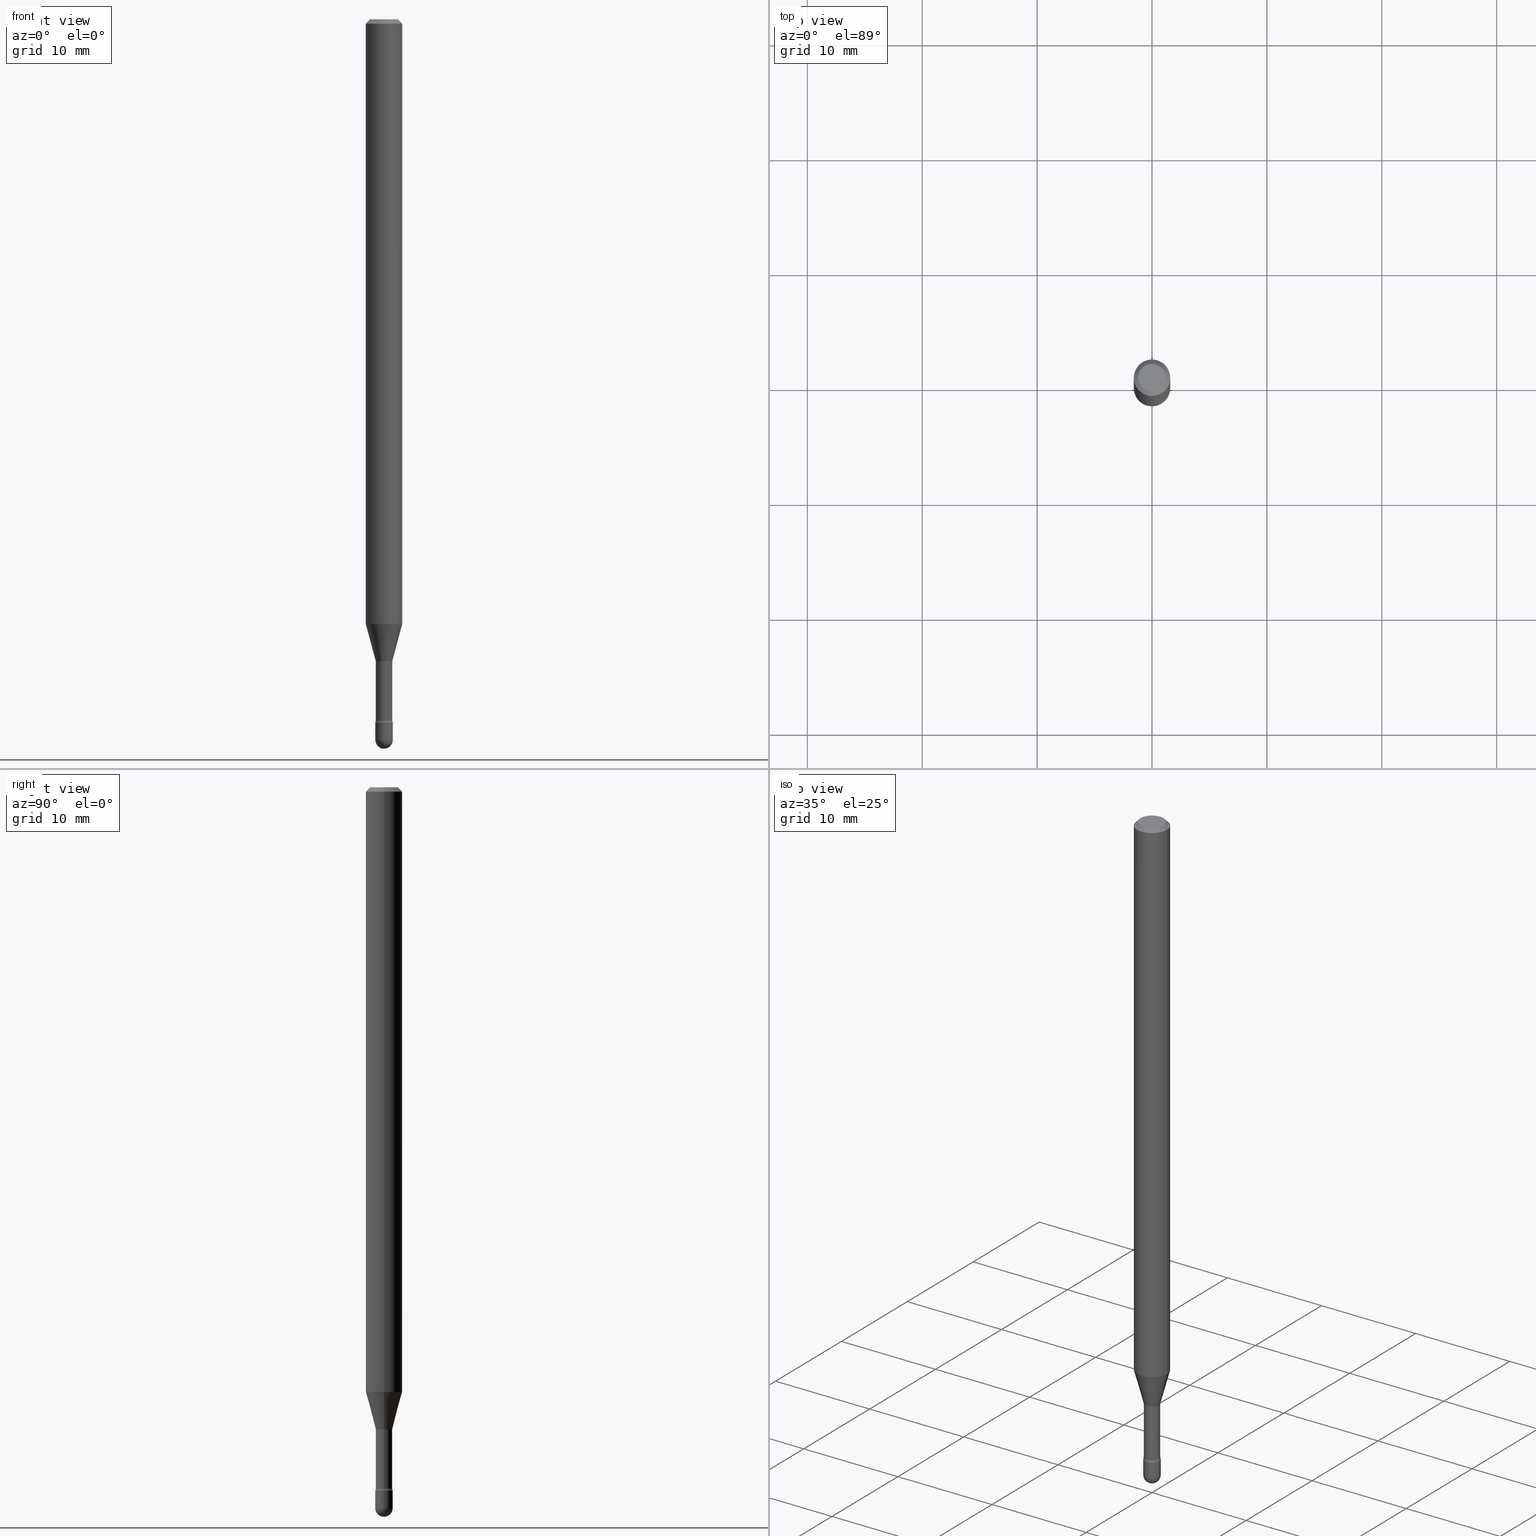
[diagram: canonical four-view strip — front | top / right | iso, engineering-drawing reading convention]
A machine part, canonical four-view strip (front | top / right | iso — engineering-drawing reading convention). The complete STEP part file that produces these views, byte-faithful:
ISO-10303-21;
HEADER;
FILE_DESCRIPTION (( 'STEP AP203' ),
    '1' );
FILE_NAME ('09495.STEP',
    '2024-04-09T23:51:36',
    ( '' ),
    ( '' ),
    'SwSTEP 2.0',
    'SolidWorks 2023',
    '' );
FILE_SCHEMA (( 'CONFIG_CONTROL_DESIGN' ));
ENDSEC;

DATA;
#1 = DATE_TIME_ROLE ( 'creation_date' ) ;
#2 = EDGE_LOOP ( 'NONE', ( #99, #191 ) ) ;
#3 = CONICAL_SURFACE ( 'NONE', #25, 0.02871111260566398468, 0.2617993877991500740 ) ;
#4 = AXIS2_PLACEMENT_3D ( 'NONE', #77, #243, #412 ) ;
#5 = PRODUCT_DEFINITION_FORMATION_WITH_SPECIFIED_SOURCE ( 'ANY', '', #278, .NOT_KNOWN. ) ;
#6 = DATE_AND_TIME ( #240, #58 ) ;
#7 = ORIENTED_EDGE ( 'NONE', *, *, #265, .T. ) ;
#8 = FACE_OUTER_BOUND ( 'NONE', #320, .T. ) ;
#9 = APPROVAL ( #153, 'UNSPECIFIED' ) ;
#10 = DIRECTION ( 'NONE',  ( -2.445468806185136877E-29, 3.491481338843145188E-15, 1.000000000000000000 ) ) ;
#11 = AXIS2_PLACEMENT_3D ( 'NONE', #490, #72, #251 ) ;
#12 = APPROVAL_PERSON_ORGANIZATION ( #270, #309, #442 ) ;
#13 = ORIENTED_EDGE ( 'NONE', *, *, #438, .F. ) ;
#14 = CARTESIAN_POINT ( 'NONE',  ( -0.03000000000000000583, -8.201307205883951433E-15, -2.410000000000000142 ) ) ;
#15 = ADVANCED_FACE ( 'NONE', ( #161 ), #512, .T. ) ;
#16 = LINE ( 'NONE', #101, #284 ) ;
#17 = ORIENTED_EDGE ( 'NONE', *, *, #232, .F. ) ;
#18 =( NAMED_UNIT ( * ) SI_UNIT ( $, .STERADIAN. ) SOLID_ANGLE_UNIT ( ) );
#19 = VERTEX_POINT ( 'NONE', #414 ) ;
#20 = DIRECTION ( 'NONE',  ( -2.445468806185136597E-29, 3.491481338843145583E-15, 1.000000000000000000 ) ) ;
#21 = CARTESIAN_POINT ( 'NONE',  ( 0.06250000000000000000, -4.888073874380391431E-16, -0.01500000000000008271 ) ) ;
#22 = DIRECTION ( 'NONE',  ( -2.445468806185136597E-29, 3.491481338843145583E-15, 1.000000000000000000 ) ) ;
#23 = ORIENTED_EDGE ( 'NONE', *, *, #491, .T. ) ;
#24 = DIRECTION ( 'NONE',  ( 1.000000000000000000, -6.982962677686299054E-15, 0.000000000000000000 ) ) ;
#25 = AXIS2_PLACEMENT_3D ( 'NONE', #122, #434, #262 ) ;
#26 = DIRECTION ( 'NONE',  ( 1.000000000000000000, -6.982962677686255667E-15, 0.000000000000000000 ) ) ;
#27 = AXIS2_PLACEMENT_3D ( 'NONE', #558, #562, #437 ) ;
#28 = EDGE_CURVE ( 'NONE', #59, #19, #385, .T. ) ;
#29 = EDGE_LOOP ( 'NONE', ( #477, #32, #354, #502 ) ) ;
#30 = CARTESIAN_POINT ( 'NONE',  ( 5.066988519135135927E-29, -7.234316714221647689E-15, -2.071990657300387895 ) ) ;
#31 = CARTESIAN_POINT ( 'NONE',  ( 6.040307951277287977E-29, -8.623958906942569995E-15, -2.470000000000000195 ) ) ;
#32 = ORIENTED_EDGE ( 'NONE', *, *, #343, .T. ) ;
#33 = DIRECTION ( 'NONE',  ( -1.000000000000000000, 6.982962677686265922E-15, -4.883557194083112340E-29 ) ) ;
#34 = DIRECTION ( 'NONE',  ( 0.7071067811865475727, -7.319954787623256045E-15, -0.7071067811865474617 ) ) ;
#35 = EDGE_CURVE ( 'NONE', #245, #548, #135, .T. ) ;
#36 = AXIS2_PLACEMENT_3D ( 'NONE', #503, #454, #552 ) ;
#37 = AXIS2_PLACEMENT_3D ( 'NONE', #63, #275, #155 ) ;
#38 = EDGE_CURVE ( 'NONE', #455, #245, #522, .T. ) ;
#39 = CARTESIAN_POINT ( 'NONE',  ( 0.02819999999999999590, -8.586514147837976028E-15, -2.402875394747777893 ) ) ;
#40 = DIRECTION ( 'NONE',  ( -2.445468806185136597E-29, 3.491481338843145583E-15, 1.000000000000000000 ) ) ;
#41 = DIRECTION ( 'NONE',  ( 1.000000000000000000, -6.982962677686278543E-15, 0.000000000000000000 ) ) ;
#42 = CC_DESIGN_DATE_AND_TIME_ASSIGNMENT ( #476, #1, ( #86 ) ) ;
#43 = CARTESIAN_POINT ( 'NONE',  ( -0.02819999999999999590, -7.838501188195762748E-15, -2.201974787463810923 ) ) ;
#44 = DIRECTION ( 'NONE',  ( -1.000000000000000000, 7.105427357600978193E-15, 0.000000000000000000 ) ) ;
#45 = AXIS2_PLACEMENT_3D ( 'NONE', #115, #296, #459 ) ;
#46 = APPLICATION_PROTOCOL_DEFINITION ( 'international standard', 'config_control_design', 1994, #229 ) ;
#47 = CYLINDRICAL_SURFACE ( 'NONE', #65, 0.03000000000000000583 ) ;
#48 = ORIENTED_EDGE ( 'NONE', *, *, #431, .F. ) ;
#49 = PERSON_AND_ORGANIZATION ( #421, #480 ) ;
#50 = CARTESIAN_POINT ( 'NONE',  ( 5.893579822906179826E-29, -8.414470026611981678E-15, -2.410000000000000142 ) ) ;
#51 = EDGE_LOOP ( 'NONE', ( #447, #162, #253, #274 ) ) ;
#52 = EDGE_CURVE ( 'NONE', #532, #249, #305, .T. ) ;
#53 = PERSON_AND_ORGANIZATION ( #421, #480 ) ;
#54 = MANIFOLD_SOLID_BREP ( 'Body-Move/Copy2[1]', #470 ) ;
#55 = AXIS2_PLACEMENT_3D ( 'NONE', #256, #535, #26 ) ;
#56 = AXIS2_PLACEMENT_3D ( 'NONE', #500, #111, #69 ) ;
#57 = SECURITY_CLASSIFICATION_LEVEL ( 'unclassified' ) ;
#58 = LOCAL_TIME ( 19, 51, 36.00000000000000000, #227 ) ;
#59 = VERTEX_POINT ( 'NONE', #547 ) ;
#60 = CARTESIAN_POINT ( 'NONE',  ( 6.114954764896610855E-29, -8.726866376909143979E-15, -2.500000000000000000 ) ) ;
#61 = EDGE_CURVE ( 'NONE', #159, #366, #425, .T. ) ;
#62 = EDGE_LOOP ( 'NONE', ( #504, #551, #411, #489 ) ) ;
#63 = CARTESIAN_POINT ( 'NONE',  ( 5.384860654748895550E-29, -7.688153879032997927E-15, -2.201974787463810923 ) ) ;
#64 = FACE_OUTER_BOUND ( 'NONE', #283, .T. ) ;
#65 = AXIS2_PLACEMENT_3D ( 'NONE', #176, #395, #224 ) ;
#66 = EDGE_LOOP ( 'NONE', ( #288, #415, #201, #7 ) ) ;
#67 = DIRECTION ( 'NONE',  ( 1.000000000000000000, -6.982962677686265922E-15, 4.883557194083112340E-29 ) ) ;
#68 = EDGE_LOOP ( 'NONE', ( #439, #566, #139, #314 ) ) ;
#69 = DIRECTION ( 'NONE',  ( 1.000000000000000000, -6.982962677686277755E-15, 0.000000000000000000 ) ) ;
#70 = DIRECTION ( 'NONE',  ( -2.445468806185136597E-29, 3.491481338843145583E-15, 1.000000000000000000 ) ) ;
#71 = ORIENTED_EDGE ( 'NONE', *, *, #533, .T. ) ;
#72 = DIRECTION ( 'NONE',  ( -2.445468806185136597E-29, 3.491481338843145583E-15, 1.000000000000000000 ) ) ;
#73 = VERTEX_POINT ( 'NONE', #287 ) ;
#74 = CIRCLE ( 'NONE', #295, 0.04749999999999999362 ) ;
#75 = LOCAL_TIME ( 19, 51, 36.00000000000000000, #94 ) ;
#76 = VERTEX_POINT ( 'NONE', #330 ) ;
#77 = CARTESIAN_POINT ( 'NONE',  ( -0.04320000000000000923, -8.082640138478858353E-15, -2.402875394747777449 ) ) ;
#78 = DIRECTION ( 'NONE',  ( -2.445468806185136597E-29, 3.491481338843145583E-15, 1.000000000000000000 ) ) ;
#79 = CARTESIAN_POINT ( 'NONE',  ( -1.169113584055446105E-44, 1.669184350826100908E-30, 4.780733988912460139E-16 ) ) ;
#80 = ADVANCED_FACE ( 'NONE', ( #501 ), #550, .T. ) ;
#81 = CARTESIAN_POINT ( 'NONE',  ( 2.094888803306483442E-16, 0.02999999999999137038, -2.470000000000000195 ) ) ;
#82 = EDGE_CURVE ( 'NONE', #181, #76, #461, .T. ) ;
#83 = CARTESIAN_POINT ( 'NONE',  ( 3.668203209277725232E-31, -5.237222008264747365E-17, -0.01500000000000008271 ) ) ;
#84 = CIRCLE ( 'NONE', #56, 0.02871111260566398468 ) ;
#85 = LOCAL_TIME ( 19, 51, 36.00000000000000000, #353 ) ;
#87 = CARTESIAN_POINT ( 'NONE',  ( -0.04320000000000000229, -7.381199417184635320E-15, -2.201974787463810923 ) ) ;
#86 = PRODUCT_DEFINITION ( 'UNKNOWN', '', #5, #102 ) ;
#88 = ADVANCED_BREP_SHAPE_REPRESENTATION ( '09495', ( #54, #239, #531 ), #498 ) ;
#89 = PERSON_AND_ORGANIZATION ( #421, #480 ) ;
#90 = DIRECTION ( 'NONE',  ( 1.000000000000000000, -6.982962677686269866E-15, 4.883557194083114583E-29 ) ) ;
#91 = AXIS2_PLACEMENT_3D ( 'NONE', #329, #464, #324 ) ;
#92 = EDGE_CURVE ( 'NONE', #488, #208, #106, .T. ) ;
#93 = ORIENTED_EDGE ( 'NONE', *, *, #38, .T. ) ;
#94 = COORDINATED_UNIVERSAL_TIME_OFFSET ( 5, 0, .BEHIND. ) ;
#95 = LINE ( 'NONE', #133, #264 ) ;
#96 = ORIENTED_EDGE ( 'NONE', *, *, #399, .T. ) ;
#97 = AXIS2_PLACEMENT_3D ( 'NONE', #391, #433, #168 ) ;
#98 = ADVANCED_FACE ( 'NONE', ( #380 ), #244, .T. ) ;
#99 = ORIENTED_EDGE ( 'NONE', *, *, #563, .T. ) ;
#100 = DIRECTION ( 'NONE',  ( -2.445468806185136597E-29, 3.491481338843145583E-15, 1.000000000000000000 ) ) ;
#101 = CARTESIAN_POINT ( 'NONE',  ( -0.02871111260566398468, -7.470594226065859749E-15, -2.198092501787273001 ) ) ;
#102 = DESIGN_CONTEXT ( 'detailed design', #229, 'design' ) ;
#103 = COORDINATED_UNIVERSAL_TIME_OFFSET ( 5, 0, .BEHIND. ) ;
#104 = ORIENTED_EDGE ( 'NONE', *, *, #387, .F. ) ;
#105 = CARTESIAN_POINT ( 'NONE',  ( 3.668203209277725232E-31, -5.237222008264747365E-17, -0.01500000000000008271 ) ) ;
#106 = CIRCLE ( 'NONE', #143, 0.02999999999999997807 ) ;
#107 = AXIS2_PLACEMENT_3D ( 'NONE', #130, #310, #517 ) ;
#108 = CARTESIAN_POINT ( 'NONE',  ( 0.04320000000000000923, -8.691258588003269398E-15, -2.402875394747777449 ) ) ;
#109 = ORIENTED_EDGE ( 'NONE', *, *, #280, .F. ) ;
#110 = EDGE_CURVE ( 'NONE', #488, #290, #177, .T. ) ;
#111 = DIRECTION ( 'NONE',  ( -2.445468806185136597E-29, 3.491481338843145583E-15, 1.000000000000000000 ) ) ;
#112 = DIRECTION ( 'NONE',  ( -2.445468806185136597E-29, 3.491481338843145583E-15, 1.000000000000000000 ) ) ;
#113 = ORIENTED_EDGE ( 'NONE', *, *, #138, .F. ) ;
#114 = DIRECTION ( 'NONE',  ( 1.000000000000000000, -6.982962677686266711E-15, 0.000000000000000000 ) ) ;
#115 = CARTESIAN_POINT ( 'NONE',  ( 3.668203209277725232E-31, -5.237222008264747365E-17, -0.01500000000000008271 ) ) ;
#116 = DIRECTION ( 'NONE',  ( -2.445468806185136597E-29, 3.491481338843145583E-15, 1.000000000000000000 ) ) ;
#117 = ORIENTED_EDGE ( 'NONE', *, *, #242, .T. ) ;
#118 = AXIS2_PLACEMENT_3D ( 'NONE', #83, #40, #126 ) ;
#119 = APPLICATION_CONTEXT ( 'configuration controlled 3d designs of mechanical parts and assemblies' ) ;
#120 = CIRCLE ( 'NONE', #523, 0.02999999999999999889 ) ;
#121 = PRODUCT_RELATED_PRODUCT_CATEGORY ( 'detail', '', ( #278 ) ) ;
#122 = CARTESIAN_POINT ( 'NONE',  ( 5.375366646230222807E-29, -7.674598951041308129E-15, -2.198092501787273001 ) ) ;
#123 = DIRECTION ( 'NONE',  ( -2.445468806185136877E-29, 3.491481338843145188E-15, 1.000000000000000000 ) ) ;
#124 = EDGE_CURVE ( 'NONE', #137, #548, #457, .T. ) ;
#125 = CARTESIAN_POINT ( 'NONE',  ( 5.876156823005485882E-29, -8.389594600327222537E-15, -2.402875394747777449 ) ) ;
#126 = DIRECTION ( 'NONE',  ( 1.000000000000000000, -6.982962677686266711E-15, 0.000000000000000000 ) ) ;
#127 = CIRCLE ( 'NONE', #365, 0.02819999999999999590 ) ;
#128 = ADVANCED_FACE ( 'NONE', ( #347 ), #3, .T. ) ;
#129 = FACE_OUTER_BOUND ( 'NONE', #185, .T. ) ;
#130 = CARTESIAN_POINT ( 'NONE',  ( 6.040307951277287977E-29, -8.623958906942569995E-15, -2.470000000000000195 ) ) ;
#131 = CARTESIAN_POINT ( 'NONE',  ( 5.893579822906179826E-29, -8.414470026611981678E-15, -2.410000000000000142 ) ) ;
#132 = PERSON_AND_ORGANIZATION ( #421, #480 ) ;
#133 = CARTESIAN_POINT ( 'NONE',  ( -0.03000000000000000583, 2.131628207280300972E-16, -1.475680527076471882E-30 ) ) ;
#134 = ADVANCED_FACE ( 'NONE', ( #342 ), #559, .F. ) ;
#135 = CIRCLE ( 'NONE', #216, 0.02819999999999999590 ) ;
#136 = AXIS2_PLACEMENT_3D ( 'NONE', #473, #432, #90 ) ;
#137 = VERTEX_POINT ( 'NONE', #557 ) ;
#138 = EDGE_CURVE ( 'NONE', #366, #73, #364, .T. ) ;
#139 = ORIENTED_EDGE ( 'NONE', *, *, #367, .F. ) ;
#140 = CARTESIAN_POINT ( 'NONE',  ( -0.06250000000000000000, 3.840629472727441958E-16, -0.01500000000000008271 ) ) ;
#141 = EDGE_LOOP ( 'NONE', ( #13, #331, #71, #368 ) ) ;
#142 = DIRECTION ( 'NONE',  ( -1.000000000000000000, 6.982962677686266711E-15, 0.000000000000000000 ) ) ;
#143 = AXIS2_PLACEMENT_3D ( 'NONE', #31, #67, #211 ) ;
#144 = VERTEX_POINT ( 'NONE', #219 ) ;
#145 = AXIS2_PLACEMENT_3D ( 'NONE', #105, #539, #114 ) ;
#146 = EDGE_LOOP ( 'NONE', ( #521, #23, #113, #202 ) ) ;
#147 = DIRECTION ( 'NONE',  ( 1.000000000000000000, -6.982962677686270655E-15, 4.883557194083114583E-29 ) ) ;
#148 = FACE_OUTER_BOUND ( 'NONE', #62, .T. ) ;
#149 = APPROVAL_STATUS ( 'not_yet_approved' ) ;
#150 = ORIENTED_EDGE ( 'NONE', *, *, #138, .T. ) ;
#151 = ORIENTED_EDGE ( 'NONE', *, *, #497, .F. ) ;
#152 = EDGE_CURVE ( 'NONE', #19, #366, #221, .T. ) ;
#153 = APPROVAL_STATUS ( 'not_yet_approved' ) ;
#154 = EDGE_LOOP ( 'NONE', ( #402, #323, #267, #212, #499 ) ) ;
#155 = DIRECTION ( 'NONE',  ( 1.000000000000000000, -6.982962677686269866E-15, 4.883557194083114583E-29 ) ) ;
#156 = AXIS2_PLACEMENT_3D ( 'NONE', #79, #370, #417 ) ;
#157 = CIRCLE ( 'NONE', #429, 0.03000000000000000583 ) ;
#158 = DIRECTION ( 'NONE',  ( 1.000000000000000000, -6.982962677686262766E-15, 0.000000000000000000 ) ) ;
#159 = VERTEX_POINT ( 'NONE', #345 ) ;
#160 = PLANE ( 'NONE',  #91 ) ;
#161 = FACE_OUTER_BOUND ( 'NONE', #146, .T. ) ;
#162 = ORIENTED_EDGE ( 'NONE', *, *, #167, .T. ) ;
#163 = CARTESIAN_POINT ( 'NONE',  ( 0.03000000000000000583, -2.094888803305880457E-16, 1.462853032738781053E-30 ) ) ;
#164 = APPROVAL ( #149, 'UNSPECIFIED' ) ;
#165 = EDGE_LOOP ( 'NONE', ( #534, #151, #93, #198 ) ) ;
#166 = ORIENTED_EDGE ( 'NONE', *, *, #236, .F. ) ;
#167 = EDGE_CURVE ( 'NONE', #137, #532, #317, .T. ) ;
#168 = DIRECTION ( 'NONE',  ( 6.982962677686265922E-15, 1.000000000000000000, 0.000000000000000000 ) ) ;
#169 = CARTESIAN_POINT ( 'NONE',  ( 5.384860654748895550E-29, -7.688153879032997927E-15, -2.201974787463810923 ) ) ;
#170 = CC_DESIGN_APPROVAL ( #309, ( #5 ) ) ;
#171 = LENGTH_MEASURE_WITH_UNIT ( LENGTH_MEASURE( 0.02539999999999999897 ), #427 );
#172 = CARTESIAN_POINT ( 'NONE',  ( 5.876156823005487003E-29, -8.389594600327222537E-15, -2.402875394747777893 ) ) ;
#173 = CARTESIAN_POINT ( 'NONE',  ( 0.06250000000000000000, -4.364351673553899931E-16, 4.780733988912490708E-16 ) ) ;
#174 = EDGE_CURVE ( 'NONE', #144, #548, #192, .T. ) ;
#175 = LINE ( 'NONE', #389, #418 ) ;
#176 = CARTESIAN_POINT ( 'NONE',  ( 0.000000000000000000, 0.000000000000000000, 0.000000000000000000 ) ) ;
#177 = CIRCLE ( 'NONE', #281, 0.02999999999999997807 ) ;
#178 = CIRCLE ( 'NONE', #250, 0.04749999999999999362 ) ;
#179 = DIRECTION ( 'NONE',  ( 1.000000000000000000, -6.982962677686266711E-15, 4.947382444955205209E-29 ) ) ;
#180 = PERSON_AND_ORGANIZATION_ROLE ( 'creator' ) ;
#181 = VERTEX_POINT ( 'NONE', #303 ) ;
#182 = APPROVAL_DATE_TIME ( #6, #9 ) ;
#183 = ADVANCED_FACE ( 'NONE', ( #258 ), #507, .F. ) ;
#184 = AXIS2_PLACEMENT_3D ( 'NONE', #234, #408, #147 ) ;
#185 = EDGE_LOOP ( 'NONE', ( #453, #374, #527, #413 ) ) ;
#186 = EDGE_LOOP ( 'NONE', ( #371, #96, #538, #233 ) ) ;
#187 = COORDINATED_UNIVERSAL_TIME_OFFSET ( 5, 0, .BEHIND. ) ;
#188 = DIRECTION ( 'NONE',  ( -0.7071067811865475727, 2.468850131082257455E-15, -0.7071067811865474617 ) ) ;
#189 = UNCERTAINTY_MEASURE_WITH_UNIT (LENGTH_MEASURE( 1.000000000000000082E-05 ), #554, 'distance_accuracy_value', 'NONE');
#190 = ADVANCED_FACE ( 'NONE', ( #392 ), #358, .T. ) ;
#191 = ORIENTED_EDGE ( 'NONE', *, *, #471, .T. ) ;
#192 = CIRCLE ( 'NONE', #325, 0.01500000000000002720 ) ;
#193 = ORIENTED_EDGE ( 'NONE', *, *, #276, .F. ) ;
#194 = CARTESIAN_POINT ( 'NONE',  ( 2.023552857353652888E-45, -2.889097183224559242E-31, -8.274703207154537794E-17 ) ) ;
#195 = CC_DESIGN_APPROVAL ( #9, ( #86 ) ) ;
#196 = PLANE ( 'NONE',  #308 ) ;
#197 = PRODUCT_DEFINITION_SHAPE ( 'NONE', 'NONE',  #86 ) ;
#198 = ORIENTED_EDGE ( 'NONE', *, *, #35, .T. ) ;
#199 = CARTESIAN_POINT ( 'NONE',  ( -0.06250000000000000000, 4.440892098500642925E-16, 4.780733988912429571E-16 ) ) ;
#200 = ADVANCED_FACE ( 'NONE', ( #307 ), #47, .T. ) ;
#201 = ORIENTED_EDGE ( 'NONE', *, *, #52, .T. ) ;
#202 = ORIENTED_EDGE ( 'NONE', *, *, #152, .F. ) ;
#203 = CARTESIAN_POINT ( 'NONE',  ( -1.169113584055446105E-44, 1.669184350826100908E-30, 4.780733988912460139E-16 ) ) ;
#204 = EDGE_LOOP ( 'NONE', ( #193, #117, #326, #458, #166 ) ) ;
#205 = AXIS2_PLACEMENT_3D ( 'NONE', #50, #360, #268 ) ;
#206 = DIRECTION ( 'NONE',  ( 1.000000000000000000, -6.982962677686299054E-15, 0.000000000000000000 ) ) ;
#207 = LOCAL_TIME ( 19, 51, 36.00000000000000000, #103 ) ;
#208 = VERTEX_POINT ( 'NONE', #81 ) ;
#209 = DIRECTION ( 'NONE',  ( 1.000000000000000000, -6.982962677686262766E-15, 0.000000000000000000 ) ) ;
#210 = LINE ( 'NONE', #163, #375 ) ;
#211 = DIRECTION ( 'NONE',  ( 6.982962677686265922E-15, 1.000000000000000000, 0.000000000000000000 ) ) ;
#212 = ORIENTED_EDGE ( 'NONE', *, *, #404, .F. ) ;
#213 = CC_DESIGN_PERSON_AND_ORGANIZATION_ASSIGNMENT ( #403, #525, ( #278 ) ) ;
#214 = FACE_OUTER_BOUND ( 'NONE', #68, .T. ) ;
#215 = DIRECTION ( 'NONE',  ( 1.000000000000000000, -6.982962677686266711E-15, 4.947382444955205209E-29 ) ) ;
#216 = AXIS2_PLACEMENT_3D ( 'NONE', #169, #116, #298 ) ;
#217 = FACE_OUTER_BOUND ( 'NONE', #154, .T. ) ;
#218 = AXIS2_PLACEMENT_3D ( 'NONE', #350, #352, #516 ) ;
#219 = CARTESIAN_POINT ( 'NONE',  ( -0.02871111260566398468, -7.130410865218722411E-15, -2.198092501787273001 ) ) ;
#220 = CARTESIAN_POINT ( 'NONE',  ( 5.384860654748895550E-29, -7.688153879032997927E-15, -2.201974787463810923 ) ) ;
#221 = LINE ( 'NONE', #173, #435 ) ;
#222 = AXIS2_PLACEMENT_3D ( 'NONE', #510, #286, #394 ) ;
#223 = APPLICATION_PROTOCOL_DEFINITION ( 'international standard', 'config_control_design', 1994, #119 ) ;
#224 = DIRECTION ( 'NONE',  ( 1.000000000000000000, -6.982962677686266711E-15, 4.876176775795935793E-29 ) ) ;
#225 = ADVANCED_FACE ( 'NONE', ( #217 ), #556, .T. ) ;
#226 = ORIENTED_EDGE ( 'NONE', *, *, #265, .F. ) ;
#227 = COORDINATED_UNIVERSAL_TIME_OFFSET ( 5, 0, .BEHIND. ) ;
#228 = LINE ( 'NONE', #140, #260 ) ;
#229 = APPLICATION_CONTEXT ( 'configuration controlled 3d designs of mechanical parts and assemblies' ) ;
#230 = PERSON_AND_ORGANIZATION_ROLE ( 'creator' ) ;
#231 = PERSON_AND_ORGANIZATION_ROLE ( 'classification_officer' ) ;
#232 = EDGE_CURVE ( 'NONE', #208, #382, #472, .T. ) ;
#233 = ORIENTED_EDGE ( 'NONE', *, *, #555, .F. ) ;
#234 = CARTESIAN_POINT ( 'NONE',  ( 5.876156823005485882E-29, -8.389594600327222537E-15, -2.402875394747777449 ) ) ;
#235 = ORIENTED_EDGE ( 'NONE', *, *, #399, .F. ) ;
#236 = EDGE_CURVE ( 'NONE', #76, #181, #120, .T. ) ;
#237 = TOROIDAL_SURFACE ( 'NONE', #37, 0.04320000000000000229, 0.01500000000000002373 ) ;
#238 = DIRECTION ( 'NONE',  ( 1.000000000000000000, -6.982962677686265922E-15, 4.876176775795935793E-29 ) ) ;
#239 = MANIFOLD_SOLID_BREP ( 'Body-Move/Copy2[2]', #346 ) ;
#240 = CALENDAR_DATE ( 2024, 9, 4 ) ;
#241 = ORIENTED_EDGE ( 'NONE', *, *, #438, .T. ) ;
#242 = EDGE_CURVE ( 'NONE', #382, #290, #157, .T. ) ;
#243 = DIRECTION ( 'NONE',  ( 7.105427357601001859E-15, 1.000000000000000000, -3.491481338843145583E-15 ) ) ;
#244 = CYLINDRICAL_SURFACE ( 'NONE', #529, 0.02819999999999999590 ) ;
#245 = VERTEX_POINT ( 'NONE', #428 ) ;
#246 = FACE_OUTER_BOUND ( 'NONE', #448, .T. ) ;
#247 = DIRECTION ( 'NONE',  ( -2.445468806185136597E-29, 3.491481338843145583E-15, 1.000000000000000000 ) ) ;
#248 = CARTESIAN_POINT ( 'NONE',  ( 0.06250000000000000000, -4.811533449433681963E-16, -0.01500000000000008271 ) ) ;
#249 = VERTEX_POINT ( 'NONE', #406 ) ;
#250 = AXIS2_PLACEMENT_3D ( 'NONE', #349, #255, #511 ) ;
#251 = DIRECTION ( 'NONE',  ( 1.000000000000000000, -6.982962677686268288E-15, 0.000000000000000000 ) ) ;
#252 = DIRECTION ( 'NONE',  ( 1.000000000000000000, -6.982962677686262766E-15, 0.000000000000000000 ) ) ;
#253 = ORIENTED_EDGE ( 'NONE', *, *, #300, .T. ) ;
#254 = DIRECTION ( 'NONE',  ( -2.445468806185136597E-29, 3.491481338843145583E-15, 1.000000000000000000 ) ) ;
#255 = DIRECTION ( 'NONE',  ( -2.445468806185136597E-29, 3.491481338843145583E-15, 1.000000000000000000 ) ) ;
#256 = CARTESIAN_POINT ( 'NONE',  ( 0.04320000000000000229, -7.989817866709044787E-15, -2.201974787463810923 ) ) ;
#257 = FACE_OUTER_BOUND ( 'NONE', #545, .T. ) ;
#258 = FACE_OUTER_BOUND ( 'NONE', #141, .T. ) ;
#259 = AXIS2_PLACEMENT_3D ( 'NONE', #125, #390, #467 ) ;
#260 = VECTOR ( 'NONE', #188, 39.37007874015748143 ) ;
#261 = CARTESIAN_POINT ( 'NONE',  ( 6.040307951277287977E-29, -8.623958906942569995E-15, -2.470000000000000195 ) ) ;
#262 = DIRECTION ( 'NONE',  ( 1.000000000000000000, -6.982962677686277755E-15, 0.000000000000000000 ) ) ;
#263 = DIRECTION ( 'NONE',  ( -2.445468806185136597E-29, 3.491481338843145583E-15, 1.000000000000000000 ) ) ;
#264 = VECTOR ( 'NONE', #520, 39.37007874015748143 ) ;
#265 = EDGE_CURVE ( 'NONE', #249, #482, #508, .T. ) ;
#266 = ORIENTED_EDGE ( 'NONE', *, *, #110, .T. ) ;
#267 = ORIENTED_EDGE ( 'NONE', *, *, #82, .F. ) ;
#268 = DIRECTION ( 'NONE',  ( 1.000000000000000000, -6.982962677686268288E-15, 0.000000000000000000 ) ) ;
#269 = EDGE_LOOP ( 'NONE', ( #235, #241, #319, #492 ) ) ;
#270 = PERSON_AND_ORGANIZATION ( #421, #480 ) ;
#271 = VECTOR ( 'NONE', #34, 39.37007874015748143 ) ;
#272 = VECTOR ( 'NONE', #273, 39.37007874015748143 ) ;
#273 = DIRECTION ( 'NONE',  ( -2.445468806185136877E-29, 3.491481338843145188E-15, 1.000000000000000000 ) ) ;
#274 = ORIENTED_EDGE ( 'NONE', *, *, #533, .F. ) ;
#275 = DIRECTION ( 'NONE',  ( -2.445468806185136597E-29, 3.491481338843145583E-15, 1.000000000000000000 ) ) ;
#276 = EDGE_CURVE ( 'NONE', #382, #76, #95, .T. ) ;
#277 = ORIENTED_EDGE ( 'NONE', *, *, #491, .F. ) ;
#278 = PRODUCT ( '09495', '09495', '', ( #537 ) ) ;
#279 = CARTESIAN_POINT ( 'NONE',  ( 5.893579822906179826E-29, -8.414470026611981678E-15, -2.410000000000000142 ) ) ;
#280 = EDGE_CURVE ( 'NONE', #333, #73, #228, .T. ) ;
#281 = AXIS2_PLACEMENT_3D ( 'NONE', #373, #336, #541 ) ;
#282 = CALENDAR_DATE ( 2024, 9, 4 ) ;
#283 = EDGE_LOOP ( 'NONE', ( #466, #337 ) ) ;
#284 = VECTOR ( 'NONE', #420, 39.37007874015747433 ) ;
#285 = FACE_OUTER_BOUND ( 'NONE', #2, .T. ) ;
#286 = DIRECTION ( 'NONE',  ( -2.438088387897960049E-29, 3.491481338843145188E-15, 1.000000000000000000 ) ) ;
#287 = CARTESIAN_POINT ( 'NONE',  ( -0.06250000000000000000, -3.199255257302084965E-15, -0.01500000000000008271 ) ) ;
#288 = ORIENTED_EDGE ( 'NONE', *, *, #343, .F. ) ;
#289 = CARTESIAN_POINT ( 'NONE',  ( 5.066988519135135927E-29, -7.234316714221647689E-15, -2.071990657300387895 ) ) ;
#290 = VERTEX_POINT ( 'NONE', #407 ) ;
#291 = ADVANCED_FACE ( 'NONE', ( #8 ), #338, .T. ) ;
#292 = CARTESIAN_POINT ( 'NONE',  ( 5.893579822906179826E-29, -8.414470026611981678E-15, -2.410000000000000142 ) ) ;
#293 = VERTEX_POINT ( 'NONE', #316 ) ;
#294 = AXIS2_PLACEMENT_3D ( 'NONE', #172, #263, #299 ) ;
#295 = AXIS2_PLACEMENT_3D ( 'NONE', #194, #379, #369 ) ;
#296 = DIRECTION ( 'NONE',  ( 2.445468806185136597E-29, -3.491481338843145583E-15, -1.000000000000000000 ) ) ;
#297 = LOCAL_TIME ( 19, 51, 36.00000000000000000, #187 ) ;
#298 = DIRECTION ( 'NONE',  ( 1.000000000000000000, -6.982962677686278543E-15, 0.000000000000000000 ) ) ;
#299 = DIRECTION ( 'NONE',  ( 1.000000000000000000, -6.982962677686278543E-15, 0.000000000000000000 ) ) ;
#300 = EDGE_CURVE ( 'NONE', #532, #245, #356, .T. ) ;
#301 = CC_DESIGN_DATE_AND_TIME_ASSIGNMENT ( #524, #361, ( #396 ) ) ;
#302 = DIRECTION ( 'NONE',  ( -2.445468806185136597E-29, 3.491481338843145583E-15, 1.000000000000000000 ) ) ;
#303 = CARTESIAN_POINT ( 'NONE',  ( 0.02999999999999999889, -8.623958906942569995E-15, -2.410000000000000142 ) ) ;
#304 = EDGE_CURVE ( 'NONE', #532, #137, #443, .T. ) ;
#305 = CIRCLE ( 'NONE', #495, 0.01500000000000001159 ) ;
#306 =( NAMED_UNIT ( * ) PLANE_ANGLE_UNIT ( ) SI_UNIT ( $, .RADIAN. ) );
#307 = FACE_OUTER_BOUND ( 'NONE', #204, .T. ) ;
#308 = AXIS2_PLACEMENT_3D ( 'NONE', #279, #449, #238 ) ;
#310 = DIRECTION ( 'NONE',  ( -2.445468806185136597E-29, 3.491481338843145583E-15, 1.000000000000000000 ) ) ;
#309 = APPROVAL ( #397, 'UNSPECIFIED' ) ;
#311 = DIRECTION ( 'NONE',  ( -2.445468806185136597E-29, 3.491481338843145583E-15, 1.000000000000000000 ) ) ;
#312 = CALENDAR_DATE ( 2024, 9, 4 ) ;
#313 = CIRCLE ( 'NONE', #318, 0.03000000000000000583 ) ;
#314 = ORIENTED_EDGE ( 'NONE', *, *, #339, .F. ) ;
#315 = CARTESIAN_POINT ( 'NONE',  ( 0.000000000000000000, 0.000000000000000000, 0.000000000000000000 ) ) ;
#316 = CARTESIAN_POINT ( 'NONE',  ( 0.03000000000000000583, -8.728703347107864943E-15, -2.470000000000000195 ) ) ;
#317 = CIRCLE ( 'NONE', #294, 0.02819999999999999590 ) ;
#318 = AXIS2_PLACEMENT_3D ( 'NONE', #540, #247, #206 ) ;
#319 = ORIENTED_EDGE ( 'NONE', *, *, #555, .T. ) ;
#320 = EDGE_LOOP ( 'NONE', ( #463, #441, #150, #109 ) ) ;
#321 = ADVANCED_FACE ( 'NONE', ( #285 ), #160, .F. ) ;
#322 = APPROVAL_ROLE ( '' ) ;
#323 = ORIENTED_EDGE ( 'NONE', *, *, #276, .T. ) ;
#324 = DIRECTION ( 'NONE',  ( -1.000000000000000000, 6.982962677686265922E-15, -4.876176775795935793E-29 ) ) ;
#325 = AXIS2_PLACEMENT_3D ( 'NONE', #87, #475, #44 ) ;
#326 = ORIENTED_EDGE ( 'NONE', *, *, #339, .T. ) ;
#327 = CIRCLE ( 'NONE', #462, 0.06250000000000000000 ) ;
#328 = LINE ( 'NONE', #199, #496 ) ;
#329 = CARTESIAN_POINT ( 'NONE',  ( 3.316907271900976096E-16, 0.04749999999999999362, 3.181781981480094004E-17 ) ) ;
#330 = CARTESIAN_POINT ( 'NONE',  ( -0.02999999999999999889, -8.306051646049246381E-15, -2.410000000000000142 ) ) ;
#331 = ORIENTED_EDGE ( 'NONE', *, *, #174, .T. ) ;
#332 = ORIENTED_EDGE ( 'NONE', *, *, #242, .F. ) ;
#333 = VERTEX_POINT ( 'NONE', #494 ) ;
#334 = FACE_OUTER_BOUND ( 'NONE', #66, .T. ) ;
#335 = CARTESIAN_POINT ( 'NONE',  ( 6.040307951277287977E-29, -8.623958906942569995E-15, -2.470000000000000195 ) ) ;
#336 = DIRECTION ( 'NONE',  ( -1.000000000000000000, 7.105427357601001070E-15, -4.926315508542082329E-29 ) ) ;
#337 = ORIENTED_EDGE ( 'NONE', *, *, #236, .T. ) ;
#338 = CONICAL_SURFACE ( 'NONE', #543, 0.06250000000000000000, 0.7853981633974483900 ) ;
#339 = EDGE_CURVE ( 'NONE', #290, #293, #560, .T. ) ;
#340 = DIRECTION ( 'NONE',  ( 1.000000000000000000, -6.982962677686299054E-15, 0.000000000000000000 ) ) ;
#341 = CC_DESIGN_PERSON_AND_ORGANIZATION_ASSIGNMENT ( #89, #180, ( #5 ) ) ;
#342 = FACE_OUTER_BOUND ( 'NONE', #29, .T. ) ;
#343 = EDGE_CURVE ( 'NONE', #137, #482, #410, .T. ) ;
#344 = DIRECTION ( 'NONE',  ( 0.2588190451025213501, 1.565188264969621968E-15, 0.9659258262890682012 ) ) ;
#345 = CARTESIAN_POINT ( 'NONE',  ( 0.04749999999999999362, -4.035134999187581581E-16, -8.274703207154280181E-17 ) ) ;
#346 = CLOSED_SHELL ( 'NONE', ( #183, #519, #134, #291, #15, #190, #128, #80, #383, #321, #514, #481, #98, #465 ) ) ;
#347 = FACE_OUTER_BOUND ( 'NONE', #269, .T. ) ;
#348 = CIRCLE ( 'NONE', #145, 0.06250000000000000000 ) ;
#349 = CARTESIAN_POINT ( 'NONE',  ( 2.023552857353652888E-45, -2.889097183224559242E-31, -8.274703207154537794E-17 ) ) ;
#350 = CARTESIAN_POINT ( 'NONE',  ( 0.000000000000000000, 0.000000000000000000, 0.000000000000000000 ) ) ;
#351 = SPHERICAL_SURFACE ( 'NONE', #97, 0.02999999999999997807 ) ;
#352 = DIRECTION ( 'NONE',  ( -2.445468806185136597E-29, 3.491481338843145583E-15, 1.000000000000000000 ) ) ;
#353 = COORDINATED_UNIVERSAL_TIME_OFFSET ( 5, 0, .BEHIND. ) ;
#354 = ORIENTED_EDGE ( 'NONE', *, *, #387, .T. ) ;
#355 = PERSON_AND_ORGANIZATION ( #421, #480 ) ;
#356 = LINE ( 'NONE', #409, #272 ) ;
#357 = AXIS2_PLACEMENT_3D ( 'NONE', #292, #112, #422 ) ;
#358 = CONICAL_SURFACE ( 'NONE', #27, 0.02871111260566398468, 0.2617993877991500740 ) ;
#359 = DIRECTION ( 'NONE',  ( 1.000000000000000000, 0.000000000000000000, 0.000000000000000000 ) ) ;
#360 = DIRECTION ( 'NONE',  ( -2.445468806185136597E-29, 3.491481338843145583E-15, 1.000000000000000000 ) ) ;
#361 = DATE_TIME_ROLE ( 'classification_date' ) ;
#362 = CC_DESIGN_PERSON_AND_ORGANIZATION_ASSIGNMENT ( #132, #231, ( #396 ) ) ;
#363 = CARTESIAN_POINT ( 'NONE',  ( 5.876156823005487003E-29, -8.389594600327222537E-15, -2.402875394747777893 ) ) ;
#364 = CIRCLE ( 'NONE', #118, 0.06250000000000000000 ) ;
#365 = AXIS2_PLACEMENT_3D ( 'NONE', #220, #302, #41 ) ;
#366 = VERTEX_POINT ( 'NONE', #21 ) ;
#367 = EDGE_CURVE ( 'NONE', #293, #208, #313, .T. ) ;
#368 = ORIENTED_EDGE ( 'NONE', *, *, #38, .F. ) ;
#369 = DIRECTION ( 'NONE',  ( 1.000000000000000000, -6.982962677686267499E-15, 4.884662768193073002E-29 ) ) ;
#370 = DIRECTION ( 'NONE',  ( -2.445468806185136597E-29, 3.491481338843145583E-15, 1.000000000000000000 ) ) ;
#371 = ORIENTED_EDGE ( 'NONE', *, *, #497, .T. ) ;
#372 = CARTESIAN_POINT ( 'NONE',  ( 0.02871111260566398468, -7.875087578801506878E-15, -2.198092501787273001 ) ) ;
#373 = CARTESIAN_POINT ( 'NONE',  ( 6.040307951277287977E-29, -8.623958906942569995E-15, -2.470000000000000195 ) ) ;
#374 = ORIENTED_EDGE ( 'NONE', *, *, #124, .T. ) ;
#375 = VECTOR ( 'NONE', #10, 39.37007874015748143 ) ;
#376 = CC_DESIGN_APPROVAL ( #164, ( #396 ) ) ;
#377 = DIRECTION ( 'NONE',  ( -6.982962677686266711E-15, -1.000000000000000000, 3.491481338843145583E-15 ) ) ;
#378 = ORIENTED_EDGE ( 'NONE', *, *, #92, .F. ) ;
#379 = DIRECTION ( 'NONE',  ( -2.445468806185136597E-29, 3.491481338843145583E-15, 1.000000000000000000 ) ) ;
#380 = FACE_OUTER_BOUND ( 'NONE', #51, .T. ) ;
#381 = APPROVAL_DATE_TIME ( #452, #164 ) ;
#382 = VERTEX_POINT ( 'NONE', #505 ) ;
#383 = ADVANCED_FACE ( 'NONE', ( #148 ), #515, .T. ) ;
#384 = DIRECTION ( 'NONE',  ( -2.445468806185136877E-29, 3.491481338843145188E-15, 1.000000000000000000 ) ) ;
#385 = CIRCLE ( 'NONE', #450, 0.06250000000000000000 ) ;
#386 = CIRCLE ( 'NONE', #11, 0.02999999999999999889 ) ;
#387 = EDGE_CURVE ( 'NONE', #482, #249, #386, .T. ) ;
#388 = APPROVAL_PERSON_ORGANIZATION ( #528, #164, #322 ) ;
#389 = CARTESIAN_POINT ( 'NONE',  ( 0.02871111260566398468, -7.875087578801506878E-15, -2.198092501787273001 ) ) ;
#390 = DIRECTION ( 'NONE',  ( -2.445468806185136597E-29, 3.491481338843145583E-15, 1.000000000000000000 ) ) ;
#391 = CARTESIAN_POINT ( 'NONE',  ( 6.040307951277287977E-29, -8.623958906942569995E-15, -2.470000000000000195 ) ) ;
#392 = FACE_OUTER_BOUND ( 'NONE', #186, .T. ) ;
#393 = AXIS2_PLACEMENT_3D ( 'NONE', #335, #254, #24 ) ;
#394 = DIRECTION ( 'NONE',  ( 1.000000000000000000, -6.982962677686265922E-15, 4.876176775795935793E-29 ) ) ;
#395 = DIRECTION ( 'NONE',  ( -2.445468806185136597E-29, 3.491481338843145583E-15, 1.000000000000000000 ) ) ;
#396 = SECURITY_CLASSIFICATION ( '', '', #57 ) ;
#397 = APPROVAL_STATUS ( 'not_yet_approved' ) ;
#398 = CARTESIAN_POINT ( 'NONE',  ( 6.040307951277287977E-29, -8.623958906942569995E-15, -2.470000000000000195 ) ) ;
#399 = EDGE_CURVE ( 'NONE', #144, #59, #16, .T. ) ;
#400 = CALENDAR_DATE ( 2024, 9, 4 ) ;
#401 = DIRECTION ( 'NONE',  ( -2.445468806185136597E-29, 3.491481338843145583E-15, 1.000000000000000000 ) ) ;
#402 = ORIENTED_EDGE ( 'NONE', *, *, #232, .T. ) ;
#403 = PERSON_AND_ORGANIZATION ( #421, #480 ) ;
#404 = EDGE_CURVE ( 'NONE', #293, #181, #210, .T. ) ;
#405 = DATE_AND_TIME ( #479, #85 ) ;
#406 = CARTESIAN_POINT ( 'NONE',  ( 0.03000000000000000583, -8.623958906942569995E-15, -2.410000000000000142 ) ) ;
#407 = CARTESIAN_POINT ( 'NONE',  ( -2.131628207279695521E-16, -0.03000000000000861353, -2.470000000000000195 ) ) ;
#408 = DIRECTION ( 'NONE',  ( -2.445468806185136597E-29, 3.491481338843145583E-15, 1.000000000000000000 ) ) ;
#409 = CARTESIAN_POINT ( 'NONE',  ( 0.02819999999999999590, -1.969195475107510260E-16, 4.780733988912474930E-16 ) ) ;
#410 = CIRCLE ( 'NONE', #4, 0.01500000000000001159 ) ;
#411 = ORIENTED_EDGE ( 'NONE', *, *, #280, .T. ) ;
#412 = DIRECTION ( 'NONE',  ( -1.000000000000000000, 7.105427357600985293E-15, 0.000000000000000000 ) ) ;
#413 = ORIENTED_EDGE ( 'NONE', *, *, #300, .F. ) ;
#414 = CARTESIAN_POINT ( 'NONE',  ( 0.06250000000000001388, -7.670751881577039359E-15, -2.071990657300387895 ) ) ;
#415 = ORIENTED_EDGE ( 'NONE', *, *, #304, .F. ) ;
#416 = PLANE ( 'NONE',  #222 ) ;
#417 = DIRECTION ( 'NONE',  ( 1.000000000000000000, -6.982962677686266711E-15, 4.852736867747366207E-29 ) ) ;
#418 = VECTOR ( 'NONE', #344, 39.37007874015747433 ) ;
#419 = ORIENTED_EDGE ( 'NONE', *, *, #28, .T. ) ;
#420 = DIRECTION ( 'NONE',  ( -0.2588190451025213501, 5.211531920934551042E-15, 0.9659258262890682012 ) ) ;
#421 = PERSON ( 'UNSPECIFIED', 'UNSPECIFIED', 'UNSPECIFIED', ('UNSPECIFIED'), ('UNSPECIFIED'), ('UNSPECIFIED') ) ;
#422 = DIRECTION ( 'NONE',  ( 1.000000000000000000, -6.982962677686268288E-15, 0.000000000000000000 ) ) ;
#423 = EDGE_LOOP ( 'NONE', ( #277, #419, #486, #48 ) ) ;
#424 = CC_DESIGN_PERSON_AND_ORGANIZATION_ASSIGNMENT ( #53, #230, ( #86 ) ) ;
#425 = LINE ( 'NONE', #248, #271 ) ;
#426 = ADVANCED_FACE ( 'NONE', ( #64 ), #196, .T. ) ;
#427 =( LENGTH_UNIT ( ) NAMED_UNIT ( * ) SI_UNIT ( $, .METRE. ) );
#428 = CARTESIAN_POINT ( 'NONE',  ( 0.02819999999999999590, -7.885073426543749840E-15, -2.201974787463810923 ) ) ;
#429 = AXIS2_PLACEMENT_3D ( 'NONE', #398, #565, #340 ) ;
#430 = SPHERICAL_SURFACE ( 'NONE', #444, 0.02999999999999997807 ) ;
#431 = EDGE_CURVE ( 'NONE', #73, #366, #348, .T. ) ;
#432 = DIRECTION ( 'NONE',  ( -2.445468806185136597E-29, 3.491481338843145583E-15, 1.000000000000000000 ) ) ;
#433 = DIRECTION ( 'NONE',  ( -1.000000000000000000, 6.982962677686265922E-15, -4.883557194083112340E-29 ) ) ;
#434 = DIRECTION ( 'NONE',  ( -2.445468806185136597E-29, 3.491481338843145583E-15, 1.000000000000000000 ) ) ;
#435 = VECTOR ( 'NONE', #123, 39.37007874015748143 ) ;
#436 = DIRECTION ( 'NONE',  ( 0.000000000000000000, 0.000000000000000000, 1.000000000000000000 ) ) ;
#437 = DIRECTION ( 'NONE',  ( 1.000000000000000000, -6.982962677686277755E-15, 0.000000000000000000 ) ) ;
#438 = EDGE_CURVE ( 'NONE', #144, #455, #478, .T. ) ;
#439 = ORIENTED_EDGE ( 'NONE', *, *, #110, .F. ) ;
#440 = CARTESIAN_POINT ( 'NONE',  ( 3.668203209277725232E-31, -5.237222008264747365E-17, -0.01500000000000008271 ) ) ;
#441 = ORIENTED_EDGE ( 'NONE', *, *, #61, .T. ) ;
#442 = APPROVAL_ROLE ( '' ) ;
#443 = CIRCLE ( 'NONE', #451, 0.02819999999999999590 ) ;
#444 = AXIS2_PLACEMENT_3D ( 'NONE', #261, #33, #474 ) ;
#445 = EDGE_CURVE ( 'NONE', #19, #59, #327, .T. ) ;
#446 = DIMENSIONAL_EXPONENTS ( 1.000000000000000000, 0.000000000000000000, 0.000000000000000000, 0.000000000000000000, 0.000000000000000000, 0.000000000000000000, 0.000000000000000000 ) ;
#447 = ORIENTED_EDGE ( 'NONE', *, *, #124, .F. ) ;
#448 = EDGE_LOOP ( 'NONE', ( #226, #104 ) ) ;
#449 = DIRECTION ( 'NONE',  ( -2.438088387897960049E-29, 3.491481338843145188E-15, 1.000000000000000000 ) ) ;
#450 = AXIS2_PLACEMENT_3D ( 'NONE', #289, #70, #158 ) ;
#451 = AXIS2_PLACEMENT_3D ( 'NONE', #363, #401, #483 ) ;
#452 = DATE_AND_TIME ( #282, #207 ) ;
#453 = ORIENTED_EDGE ( 'NONE', *, *, #304, .T. ) ;
#454 = DIRECTION ( 'NONE',  ( -2.445468806185136597E-29, 3.491481338843145583E-15, 1.000000000000000000 ) ) ;
#455 = VERTEX_POINT ( 'NONE', #372 ) ;
#456 = CARTESIAN_POINT ( 'NONE',  ( 5.375366646230222807E-29, -7.674598951041308129E-15, -2.198092501787273001 ) ) ;
#457 = LINE ( 'NONE', #506, #542 ) ;
#458 = ORIENTED_EDGE ( 'NONE', *, *, #404, .T. ) ;
#459 = DIRECTION ( 'NONE',  ( -1.000000000000000000, 6.982962677686266711E-15, 0.000000000000000000 ) ) ;
#460 = CC_DESIGN_PERSON_AND_ORGANIZATION_ASSIGNMENT ( #355, #518, ( #5 ) ) ;
#461 = CIRCLE ( 'NONE', #357, 0.02999999999999999889 ) ;
#462 = AXIS2_PLACEMENT_3D ( 'NONE', #30, #100, #209 ) ;
#463 = ORIENTED_EDGE ( 'NONE', *, *, #471, .F. ) ;
#464 = DIRECTION ( 'NONE',  ( 2.438088387897960049E-29, -3.491481338843145188E-15, -1.000000000000000000 ) ) ;
#465 = ADVANCED_FACE ( 'NONE', ( #546 ), #237, .F. ) ;
#466 = ORIENTED_EDGE ( 'NONE', *, *, #82, .T. ) ;
#467 = DIRECTION ( 'NONE',  ( 1.000000000000000000, -6.982962677686270655E-15, 4.883557194083114583E-29 ) ) ;
#468 = SHAPE_DEFINITION_REPRESENTATION ( #197, #88 ) ;
#469 = CYLINDRICAL_SURFACE ( 'NONE', #530, 0.02819999999999999590 ) ;
#470 = CLOSED_SHELL ( 'NONE', ( #225, #536, #426, #526, #200 ) ) ;
#471 = EDGE_CURVE ( 'NONE', #159, #333, #74, .T. ) ;
#472 = CIRCLE ( 'NONE', #107, 0.03000000000000000583 ) ;
#473 = CARTESIAN_POINT ( 'NONE',  ( 5.384860654748895550E-29, -7.688153879032997927E-15, -2.201974787463810923 ) ) ;
#474 = DIRECTION ( 'NONE',  ( 6.982962677686265922E-15, 1.000000000000000000, 0.000000000000000000 ) ) ;
#475 = DIRECTION ( 'NONE',  ( 7.105427357601001859E-15, 1.000000000000000000, -3.491481338843145583E-15 ) ) ;
#476 = DATE_AND_TIME ( #400, #75 ) ;
#477 = ORIENTED_EDGE ( 'NONE', *, *, #167, .F. ) ;
#478 = CIRCLE ( 'NONE', #487, 0.02871111260566398468 ) ;
#479 = CALENDAR_DATE ( 2024, 9, 4 ) ;
#480 = ORGANIZATION ( 'UNSPECIFIED', 'UNSPECIFIED', '' ) ;
#481 = ADVANCED_FACE ( 'NONE', ( #334 ), #553, .F. ) ;
#482 = VERTEX_POINT ( 'NONE', #14 ) ;
#483 = DIRECTION ( 'NONE',  ( 1.000000000000000000, -6.982962677686278543E-15, 0.000000000000000000 ) ) ;
#484 = APPROVAL_ROLE ( '' ) ;
#485 = DIRECTION ( 'NONE',  ( 2.445468806185136597E-29, -3.491481338843145583E-15, -1.000000000000000000 ) ) ;
#486 = ORIENTED_EDGE ( 'NONE', *, *, #152, .T. ) ;
#487 = AXIS2_PLACEMENT_3D ( 'NONE', #456, #20, #549 ) ;
#488 = VERTEX_POINT ( 'NONE', #60 ) ;
#489 = ORIENTED_EDGE ( 'NONE', *, *, #431, .T. ) ;
#490 = CARTESIAN_POINT ( 'NONE',  ( 5.893579822906179826E-29, -8.414470026611981678E-15, -2.410000000000000142 ) ) ;
#491 = EDGE_CURVE ( 'NONE', #59, #73, #328, .T. ) ;
#492 = ORIENTED_EDGE ( 'NONE', *, *, #28, .F. ) ;
#493 = DIRECTION ( 'NONE',  ( -2.445468806185136877E-29, 3.491481338843145188E-15, 1.000000000000000000 ) ) ;
#494 = CARTESIAN_POINT ( 'NONE',  ( -0.04749999999999999362, 3.578768372314208041E-16, -8.274703207154778150E-17 ) ) ;
#495 = AXIS2_PLACEMENT_3D ( 'NONE', #108, #377, #252 ) ;
#496 = VECTOR ( 'NONE', #493, 39.37007874015748143 ) ;
#497 = EDGE_CURVE ( 'NONE', #455, #144, #84, .T. ) ;
#498 =( GEOMETRIC_REPRESENTATION_CONTEXT ( 3 ) GLOBAL_UNCERTAINTY_ASSIGNED_CONTEXT ( ( #189 ) ) GLOBAL_UNIT_ASSIGNED_CONTEXT ( ( #554, #306, #18 ) ) REPRESENTATION_CONTEXT ( 'NONE', 'WORKASPACE' ) );
#499 = ORIENTED_EDGE ( 'NONE', *, *, #367, .T. ) ;
#500 = CARTESIAN_POINT ( 'NONE',  ( 5.375366646230222807E-29, -7.674598951041308129E-15, -2.198092501787273001 ) ) ;
#501 = FACE_OUTER_BOUND ( 'NONE', #423, .T. ) ;
#502 = ORIENTED_EDGE ( 'NONE', *, *, #52, .F. ) ;
#503 = CARTESIAN_POINT ( 'NONE',  ( -1.169113584055446105E-44, 1.669184350826100908E-30, 4.780733988912460139E-16 ) ) ;
#504 = ORIENTED_EDGE ( 'NONE', *, *, #61, .F. ) ;
#505 = CARTESIAN_POINT ( 'NONE',  ( -0.03000000000000000583, -8.306051646049246381E-15, -2.470000000000000195 ) ) ;
#506 = CARTESIAN_POINT ( 'NONE',  ( -0.02819999999999999590, 2.003730514843498996E-16, 4.780733988912446334E-16 ) ) ;
#507 = TOROIDAL_SURFACE ( 'NONE', #136, 0.04320000000000000229, 0.01500000000000002373 ) ;
#508 = CIRCLE ( 'NONE', #205, 0.02999999999999999889 ) ;
#509 = CC_DESIGN_SECURITY_CLASSIFICATION ( #396, ( #5 ) ) ;
#510 = CARTESIAN_POINT ( 'NONE',  ( 2.094888803306469144E-16, 0.02999999999999158548, -2.410000000000000142 ) ) ;
#511 = DIRECTION ( 'NONE',  ( 1.000000000000000000, -6.982962677686267499E-15, 4.884662768193073002E-29 ) ) ;
#512 = CYLINDRICAL_SURFACE ( 'NONE', #156, 0.06250000000000000000 ) ;
#513 = DIRECTION ( 'NONE',  ( 1.000000000000000000, -6.982962677686268288E-15, 0.000000000000000000 ) ) ;
#514 = ADVANCED_FACE ( 'NONE', ( #246 ), #416, .F. ) ;
#515 = CONICAL_SURFACE ( 'NONE', #45, 0.06250000000000000000, 0.7853981633974483900 ) ;
#516 = DIRECTION ( 'NONE',  ( 1.000000000000000000, -6.982962677686266711E-15, 4.876176775795935793E-29 ) ) ;
#517 = DIRECTION ( 'NONE',  ( 1.000000000000000000, -6.982962677686299054E-15, 0.000000000000000000 ) ) ;
#518 = PERSON_AND_ORGANIZATION_ROLE ( 'design_supplier' ) ;
#519 = ADVANCED_FACE ( 'NONE', ( #129 ), #469, .T. ) ;
#520 = DIRECTION ( 'NONE',  ( -2.445468806185136877E-29, 3.491481338843145188E-15, 1.000000000000000000 ) ) ;
#521 = ORIENTED_EDGE ( 'NONE', *, *, #445, .T. ) ;
#522 = CIRCLE ( 'NONE', #55, 0.01500000000000002720 ) ;
#523 = AXIS2_PLACEMENT_3D ( 'NONE', #131, #311, #513 ) ;
#524 = DATE_AND_TIME ( #312, #297 ) ;
#525 = PERSON_AND_ORGANIZATION_ROLE ( 'design_owner' ) ;
#526 = ADVANCED_FACE ( 'NONE', ( #214 ), #430, .T. ) ;
#527 = ORIENTED_EDGE ( 'NONE', *, *, #35, .F. ) ;
#528 = PERSON_AND_ORGANIZATION ( #421, #480 ) ;
#529 = AXIS2_PLACEMENT_3D ( 'NONE', #203, #22, #215 ) ;
#530 = AXIS2_PLACEMENT_3D ( 'NONE', #561, #78, #179 ) ;
#531 = AXIS2_PLACEMENT_3D ( 'NONE', #315, #436, #359 ) ;
#532 = VERTEX_POINT ( 'NONE', #39 ) ;
#533 = EDGE_CURVE ( 'NONE', #548, #245, #127, .T. ) ;
#534 = ORIENTED_EDGE ( 'NONE', *, *, #174, .F. ) ;
#535 = DIRECTION ( 'NONE',  ( -6.982962677686266711E-15, -1.000000000000000000, 3.491481338843145583E-15 ) ) ;
#536 = ADVANCED_FACE ( 'NONE', ( #257 ), #351, .T. ) ;
#537 = MECHANICAL_CONTEXT ( 'NONE', #119, 'mechanical' ) ;
#538 = ORIENTED_EDGE ( 'NONE', *, *, #445, .F. ) ;
#539 = DIRECTION ( 'NONE',  ( -2.445468806185136597E-29, 3.491481338843145583E-15, 1.000000000000000000 ) ) ;
#540 = CARTESIAN_POINT ( 'NONE',  ( 6.040307951277287977E-29, -8.623958906942569995E-15, -2.470000000000000195 ) ) ;
#541 = DIRECTION ( 'NONE',  ( -7.105427357601001070E-15, -1.000000000000000000, 0.000000000000000000 ) ) ;
#542 = VECTOR ( 'NONE', #384, 39.37007874015748143 ) ;
#543 = AXIS2_PLACEMENT_3D ( 'NONE', #440, #485, #142 ) ;
#544 = APPROVAL_PERSON_ORGANIZATION ( #49, #9, #484 ) ;
#545 = EDGE_LOOP ( 'NONE', ( #378, #266, #332, #17 ) ) ;
#546 = FACE_OUTER_BOUND ( 'NONE', #165, .T. ) ;
#547 = CARTESIAN_POINT ( 'NONE',  ( -0.06250000000000001388, -6.790227504371585073E-15, -2.071990657300387895 ) ) ;
#548 = VERTEX_POINT ( 'NONE', #43 ) ;
#549 = DIRECTION ( 'NONE',  ( 1.000000000000000000, -6.982962677686277755E-15, 0.000000000000000000 ) ) ;
#550 = CYLINDRICAL_SURFACE ( 'NONE', #36, 0.06250000000000000000 ) ;
#551 = ORIENTED_EDGE ( 'NONE', *, *, #563, .F. ) ;
#552 = DIRECTION ( 'NONE',  ( 1.000000000000000000, -6.982962677686266711E-15, 4.852736867747366207E-29 ) ) ;
#553 = TOROIDAL_SURFACE ( 'NONE', #184, 0.04320000000000000923, 0.01500000000000001159 ) ;
#554 =( CONVERSION_BASED_UNIT ( 'INCH', #171 ) LENGTH_UNIT ( ) NAMED_UNIT ( #446 ) );
#555 = EDGE_CURVE ( 'NONE', #455, #19, #175, .T. ) ;
#556 = CYLINDRICAL_SURFACE ( 'NONE', #218, 0.03000000000000000583 ) ;
#557 = CARTESIAN_POINT ( 'NONE',  ( -0.02819999999999999590, -8.195264377363413638E-15, -2.402875394747777893 ) ) ;
#558 = CARTESIAN_POINT ( 'NONE',  ( 5.375366646230222807E-29, -7.674598951041308129E-15, -2.198092501787273001 ) ) ;
#559 = TOROIDAL_SURFACE ( 'NONE', #259, 0.04320000000000000923, 0.01500000000000001159 ) ;
#560 = CIRCLE ( 'NONE', #393, 0.03000000000000000583 ) ;
#561 = CARTESIAN_POINT ( 'NONE',  ( -1.169113584055446105E-44, 1.669184350826100908E-30, 4.780733988912460139E-16 ) ) ;
#562 = DIRECTION ( 'NONE',  ( -2.445468806185136597E-29, 3.491481338843145583E-15, 1.000000000000000000 ) ) ;
#563 = EDGE_CURVE ( 'NONE', #333, #159, #178, .T. ) ;
#564 = APPROVAL_DATE_TIME ( #405, #309 ) ;
#565 = DIRECTION ( 'NONE',  ( -2.445468806185136597E-29, 3.491481338843145583E-15, 1.000000000000000000 ) ) ;
#566 = ORIENTED_EDGE ( 'NONE', *, *, #92, .T. ) ;
ENDSEC;
END-ISO-10303-21;
